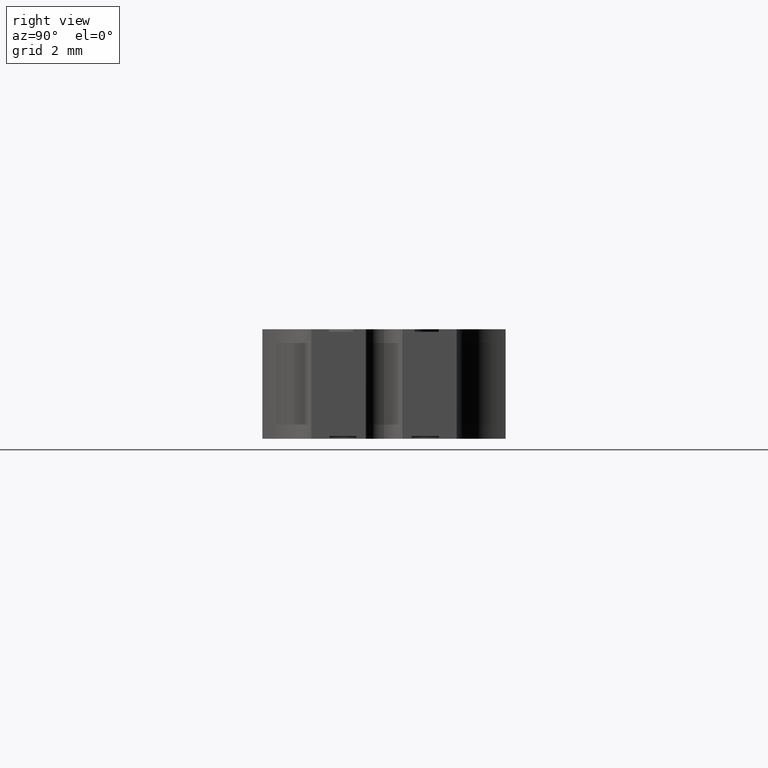
[diagram: clean part render]
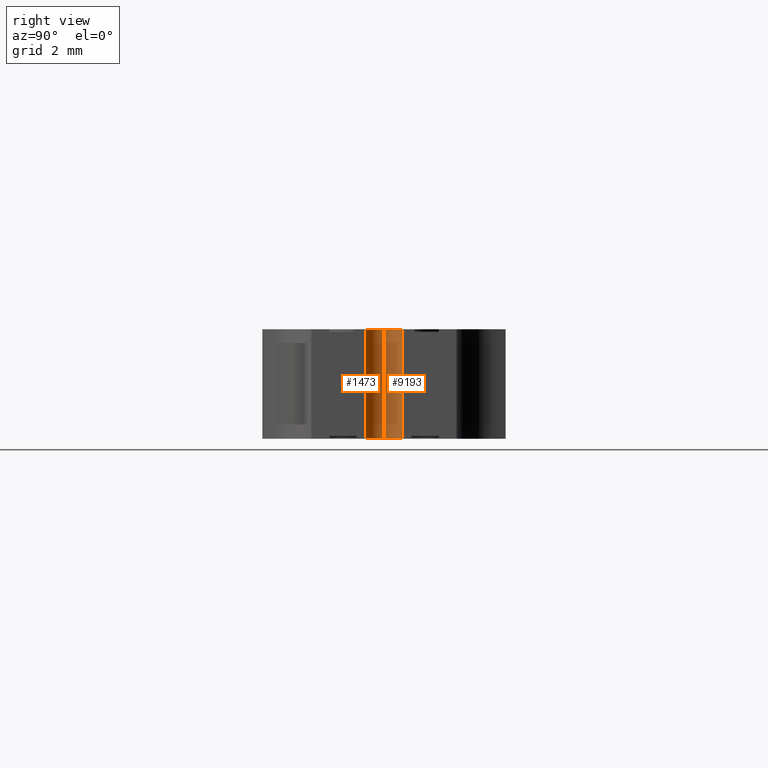
[diagram: same view with one multi-face feature highlighted, each face labeled with its STEP entity id]
A machine part, right view. The highlighted faces form ONE feature: a constant-radius fillet chain: 2 tangent blend faces with common blend radius 0.3937 mm. The faces share edges in the B-rep.
Their STEP definitions:
[1] entity #9193 (Cylinder):
#27 = DIRECTION ( 'NONE',  ( -0.000000000000000000, -0.000000000000000000, -1.000000000000000000 ) ) ;
#327 = DIRECTION ( 'NONE',  ( -0.000000000000000000, -0.000000000000000000, -1.000000000000000000 ) ) ;
#1945 = AXIS2_PLACEMENT_3D ( 'NONE', #4217, #21914, #16677 ) ;
#3686 = CARTESIAN_POINT ( 'NONE',  ( 0.2799999416078018943, 0.01497497913803885056, 0.09000000000000001055 ) ) ;
#3696 = EDGE_CURVE ( 'NONE', #21860, #22753, #16107, .T. ) ;
#4061 = EDGE_LOOP ( 'NONE', ( #17462, #9589, #4944, #20475 ) ) ;
#4217 = CARTESIAN_POINT ( 'NONE',  ( 0.2839999415794927651, -1.394717247834103868E-12, 0.002000000000000000042 ) ) ;
#4381 = VECTOR ( 'NONE', #27, 39.37007874015748143 ) ;
#4668 = DIRECTION ( 'NONE',  ( 1.000000000000000000, 0.000000000000000000, 0.000000000000000000 ) ) ;
#4944 = ORIENTED_EDGE ( 'NONE', *, *, #23042, .T. ) ;
#5162 = CARTESIAN_POINT ( 'NONE',  ( 0.2684999415794928623, -1.394717247834103868E-12, 0.000000000000000000 ) ) ;
#5386 = CARTESIAN_POINT ( 'NONE',  ( 0.2799999416078018943, 0.01497497913803885750, 0.002000000000000000042 ) ) ;
#5482 = VERTEX_POINT ( 'NONE', #12073 ) ;
#5856 = CYLINDRICAL_SURFACE ( 'NONE', #1945, 0.01549999999999990968 ) ;
#5984 = DIRECTION ( 'NONE',  ( 1.000000000000000000, 0.000000000000000000, 0.000000000000000000 ) ) ;
#6556 = CIRCLE ( 'NONE', #12514, 0.01549999999999990968 ) ;
#7073 = EDGE_CURVE ( 'NONE', #21860, #5482, #13065, .T. ) ;
#9193 = ADVANCED_FACE ( 'NONE', ( #9690 ), #5856, .F. ) ;
#9589 = ORIENTED_EDGE ( 'NONE', *, *, #20436, .T. ) ;
#9690 = FACE_OUTER_BOUND ( 'NONE', #4061, .T. ) ;
#10279 = VECTOR ( 'NONE', #327, 39.37007874015748143 ) ;
#11806 = CARTESIAN_POINT ( 'NONE',  ( 0.2799999416078018943, 0.01497497913803885750, 0.000000000000000000 ) ) ;
#11949 = AXIS2_PLACEMENT_3D ( 'NONE', #21930, #18319, #5984 ) ;
#12073 = CARTESIAN_POINT ( 'NONE',  ( 0.2684999415794928623, -1.394717247834103868E-12, 0.09000000000000001055 ) ) ;
#12514 = AXIS2_PLACEMENT_3D ( 'NONE', #17243, #20385, #4668 ) ;
#13065 = CIRCLE ( 'NONE', #11949, 0.01549999999999990968 ) ;
#14422 = CARTESIAN_POINT ( 'NONE',  ( 0.2684999415794928623, -1.394717247834103868E-12, 0.002000000000000000042 ) ) ;
#14758 = LINE ( 'NONE', #14422, #10279 ) ;
#16107 = LINE ( 'NONE', #5386, #4381 ) ;
#16677 = DIRECTION ( 'NONE',  ( -1.000000000000000000, 0.000000000000000000, 0.000000000000000000 ) ) ;
#17243 = CARTESIAN_POINT ( 'NONE',  ( 0.2839999415794927651, -1.394717247834103868E-12, 0.000000000000000000 ) ) ;
#17462 = ORIENTED_EDGE ( 'NONE', *, *, #7073, .T. ) ;
#18319 = DIRECTION ( 'NONE',  ( 0.000000000000000000, 0.000000000000000000, 1.000000000000000000 ) ) ;
#20385 = DIRECTION ( 'NONE',  ( -0.000000000000000000, -0.000000000000000000, -1.000000000000000000 ) ) ;
#20436 = EDGE_CURVE ( 'NONE', #5482, #20999, #14758, .T. ) ;
#20475 = ORIENTED_EDGE ( 'NONE', *, *, #3696, .F. ) ;
#20999 = VERTEX_POINT ( 'NONE', #5162 ) ;
#21860 = VERTEX_POINT ( 'NONE', #3686 ) ;
#21914 = DIRECTION ( 'NONE',  ( -0.000000000000000000, -0.000000000000000000, -1.000000000000000000 ) ) ;
#21930 = CARTESIAN_POINT ( 'NONE',  ( 0.2839999415794927651, -1.394717247834103868E-12, 0.09000000000000001055 ) ) ;
#22753 = VERTEX_POINT ( 'NONE', #11806 ) ;
#23042 = EDGE_CURVE ( 'NONE', #20999, #22753, #6556, .T. ) ;
[2] entity #1473 (Cylinder):
#327 = DIRECTION ( 'NONE',  ( -0.000000000000000000, -0.000000000000000000, -1.000000000000000000 ) ) ;
#399 = EDGE_CURVE ( 'NONE', #5482, #10388, #7248, .T. ) ;
#427 = DIRECTION ( 'NONE',  ( 1.000000000000000000, 0.000000000000000000, 0.000000000000000000 ) ) ;
#1473 = ADVANCED_FACE ( 'NONE', ( #9928 ), #10274, .F. ) ;
#2353 = CARTESIAN_POINT ( 'NONE',  ( 0.2839999415794927651, -1.394717247834103868E-12, 0.000000000000000000 ) ) ;
#3684 = ORIENTED_EDGE ( 'NONE', *, *, #399, .T. ) ;
#3841 = EDGE_CURVE ( 'NONE', #18755, #20999, #5868, .T. ) ;
#5162 = CARTESIAN_POINT ( 'NONE',  ( 0.2684999415794928623, -1.394717247834103868E-12, 0.000000000000000000 ) ) ;
#5482 = VERTEX_POINT ( 'NONE', #12073 ) ;
#5868 = CIRCLE ( 'NONE', #22984, 0.01549999999999990968 ) ;
#6979 = VECTOR ( 'NONE', #15062, 39.37007874015748143 ) ;
#7065 = ORIENTED_EDGE ( 'NONE', *, *, #3841, .T. ) ;
#7248 = CIRCLE ( 'NONE', #15460, 0.01549999999999990968 ) ;
#7747 = LINE ( 'NONE', #18438, #6979 ) ;
#9477 = ORIENTED_EDGE ( 'NONE', *, *, #20436, .F. ) ;
#9928 = FACE_OUTER_BOUND ( 'NONE', #17935, .T. ) ;
#10045 = DIRECTION ( 'NONE',  ( -0.000000000000000000, -0.000000000000000000, -1.000000000000000000 ) ) ;
#10274 = CYLINDRICAL_SURFACE ( 'NONE', #19812, 0.01549999999999990968 ) ;
#10279 = VECTOR ( 'NONE', #327, 39.37007874015748143 ) ;
#10388 = VERTEX_POINT ( 'NONE', #17882 ) ;
#12073 = CARTESIAN_POINT ( 'NONE',  ( 0.2684999415794928623, -1.394717247834103868E-12, 0.09000000000000001055 ) ) ;
#14422 = CARTESIAN_POINT ( 'NONE',  ( 0.2684999415794928623, -1.394717247834103868E-12, 0.002000000000000000042 ) ) ;
#14758 = LINE ( 'NONE', #14422, #10279 ) ;
#15062 = DIRECTION ( 'NONE',  ( -0.000000000000000000, -0.000000000000000000, -1.000000000000000000 ) ) ;
#15460 = AXIS2_PLACEMENT_3D ( 'NONE', #19872, #16272, #427 ) ;
#15490 = CARTESIAN_POINT ( 'NONE',  ( 0.2799999416078018943, -0.01497497914082829285, 0.000000000000000000 ) ) ;
#16272 = DIRECTION ( 'NONE',  ( 0.000000000000000000, 0.000000000000000000, 1.000000000000000000 ) ) ;
#16373 = ORIENTED_EDGE ( 'NONE', *, *, #22677, .T. ) ;
#16444 = DIRECTION ( 'NONE',  ( 1.000000000000000000, 0.000000000000000000, 0.000000000000000000 ) ) ;
#17882 = CARTESIAN_POINT ( 'NONE',  ( 0.2799999416078018943, -0.01497497914082829111, 0.09000000000000001055 ) ) ;
#17935 = EDGE_LOOP ( 'NONE', ( #9477, #3684, #16373, #7065 ) ) ;
#18073 = DIRECTION ( 'NONE',  ( -0.000000000000000000, -0.000000000000000000, -1.000000000000000000 ) ) ;
#18438 = CARTESIAN_POINT ( 'NONE',  ( 0.2799999416078018943, -0.01497497914082829285, 0.002000000000000000042 ) ) ;
#18755 = VERTEX_POINT ( 'NONE', #15490 ) ;
#18885 = CARTESIAN_POINT ( 'NONE',  ( 0.2839999415794927651, -1.394717247834103868E-12, 0.002000000000000000042 ) ) ;
#19812 = AXIS2_PLACEMENT_3D ( 'NONE', #18885, #10045, #22371 ) ;
#19872 = CARTESIAN_POINT ( 'NONE',  ( 0.2839999415794927651, -1.394717247834103868E-12, 0.09000000000000001055 ) ) ;
#20436 = EDGE_CURVE ( 'NONE', #5482, #20999, #14758, .T. ) ;
#20999 = VERTEX_POINT ( 'NONE', #5162 ) ;
#22371 = DIRECTION ( 'NONE',  ( -1.000000000000000000, 0.000000000000000000, 0.000000000000000000 ) ) ;
#22677 = EDGE_CURVE ( 'NONE', #10388, #18755, #7747, .T. ) ;
#22984 = AXIS2_PLACEMENT_3D ( 'NONE', #2353, #18073, #16444 ) ;